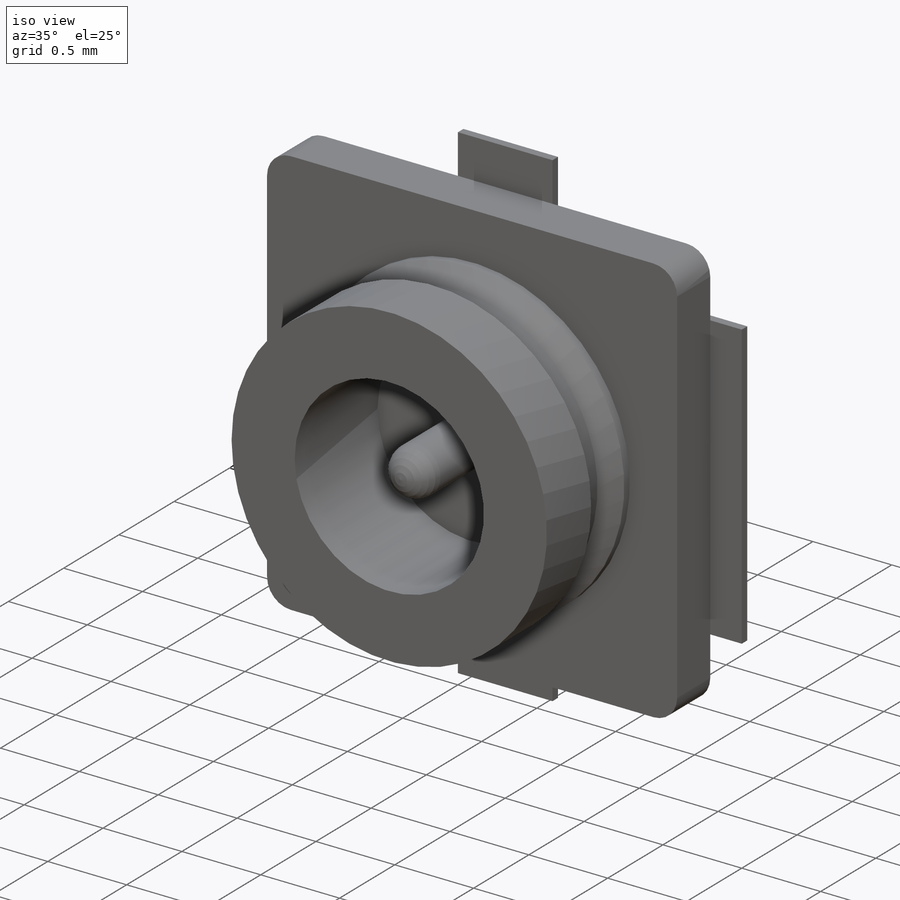
[diagram: iso view]
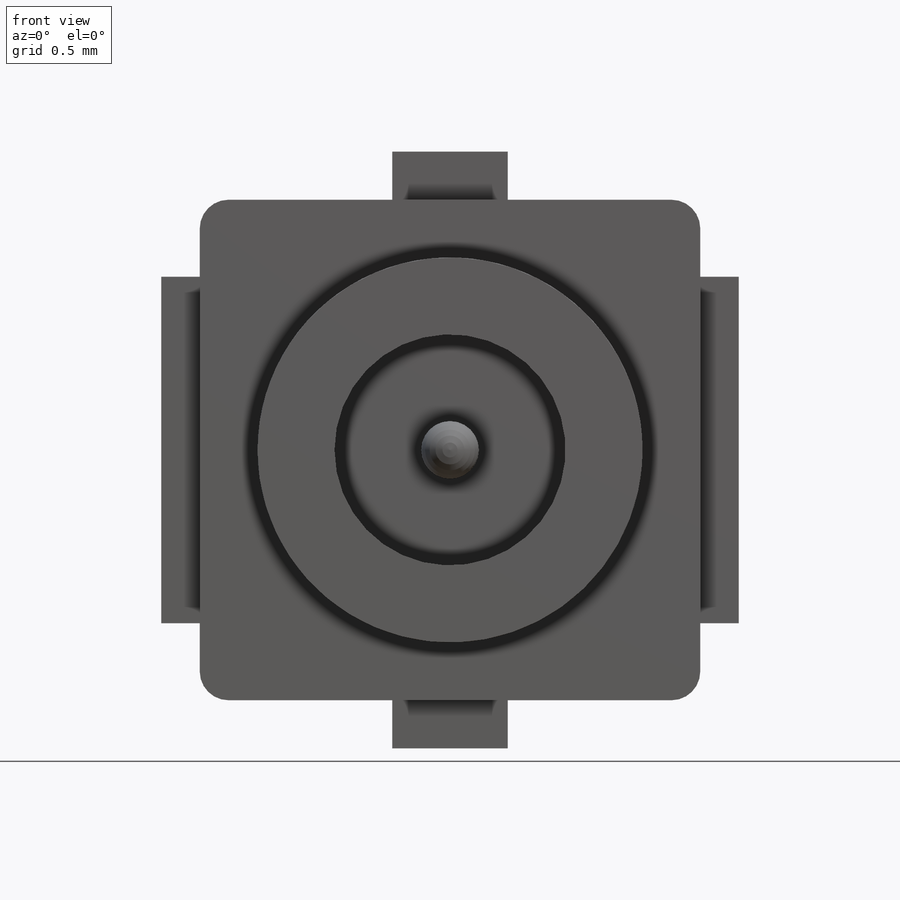
[diagram: front view]
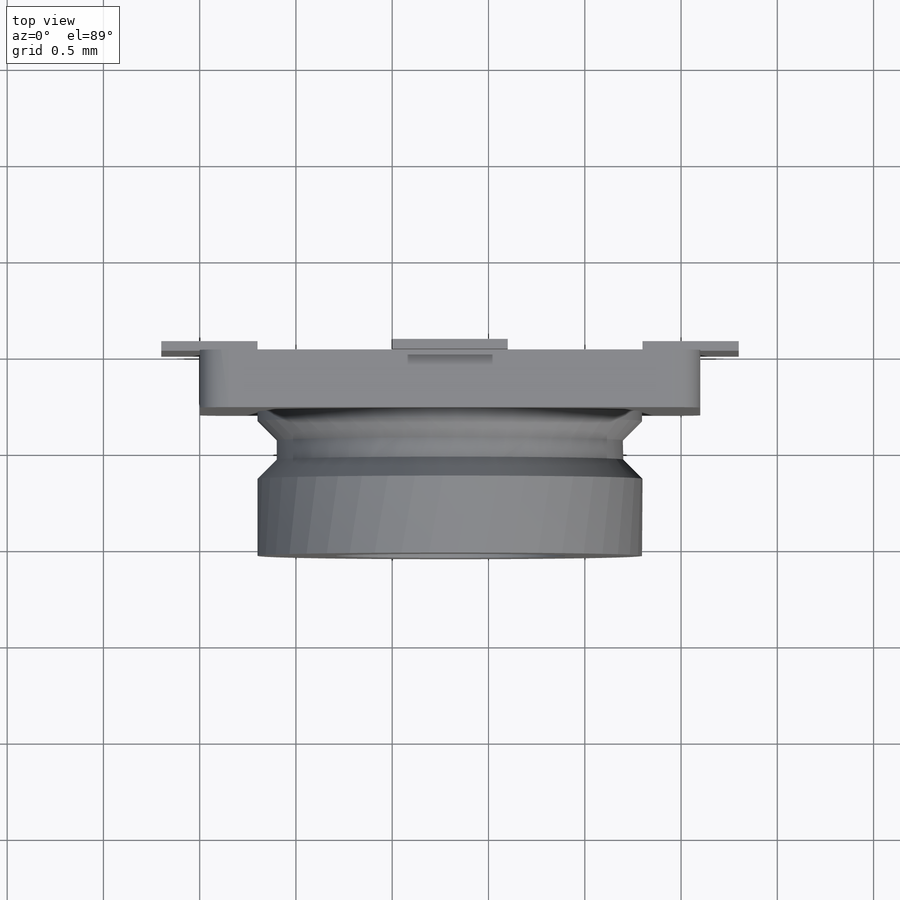
[diagram: top view]
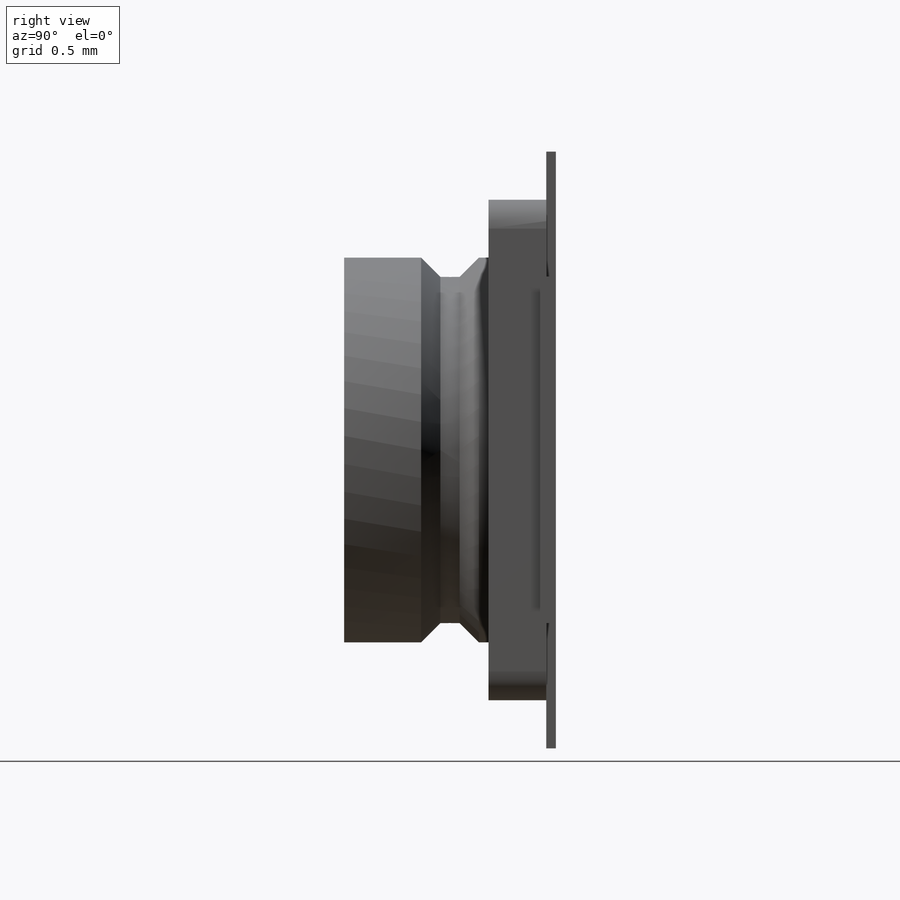
[diagram: right view]
SOLIDWORKS PART (.sldprt)
format: sldprt  version: not decoded by parser v0  size: 249,856 bytes
history: native  units: mm
features: sketch x3, extrude x2, plane x2, material x1, fillet x1, revolve x1 (+13 scaffold rows collapsed)
feature tree (23):
  scaffold x13  (default folders/planes/origin — collapsed)
  material  "Material <not specified>"
  sketch  "Sketch2"  dims[D1=2.6mm D2=2.6mm]
  extrude  "Boss-Extrude2"  Depth=0.3mm
  fillet  "Fillet1"  Radius=0.15mm
  plane  "Plane1"  Offset=1.3mm
  plane  "Plane2"  Offset=1.3mm
  sketch  "Sketch3"  dims[D6=0.6mm D1=3.0mm D2=0.5mm D3=0.5mm D4=1.8mm D5=0.6mm D7=3.1mm D8=0.35mm]
  extrude  "Boss-Extrude3"  Depth=0.05mm
  sketch  "Sketch4"  dims[c1.D5=0.15mm c1.D1=1.0mm c1.D2=0.6mm c1.D3=0.75mm c1.D4=0.65mm c1.D6=~0.089496mm c2.D6=225.0deg c2.D7=~0.106052mm c3.D7=225.0deg c3.D8=0.1mm c3.D9=0.1mm c3.D10=0.05mm]
  revolve  "Revolve1"  Angle=360deg
decode coverage: 7 of 7 modeling features carry decoded parameters
note: ~ marks probable driven/reference dimensions
note: suppression state not decoded; provenance and decode notes live in map.json
